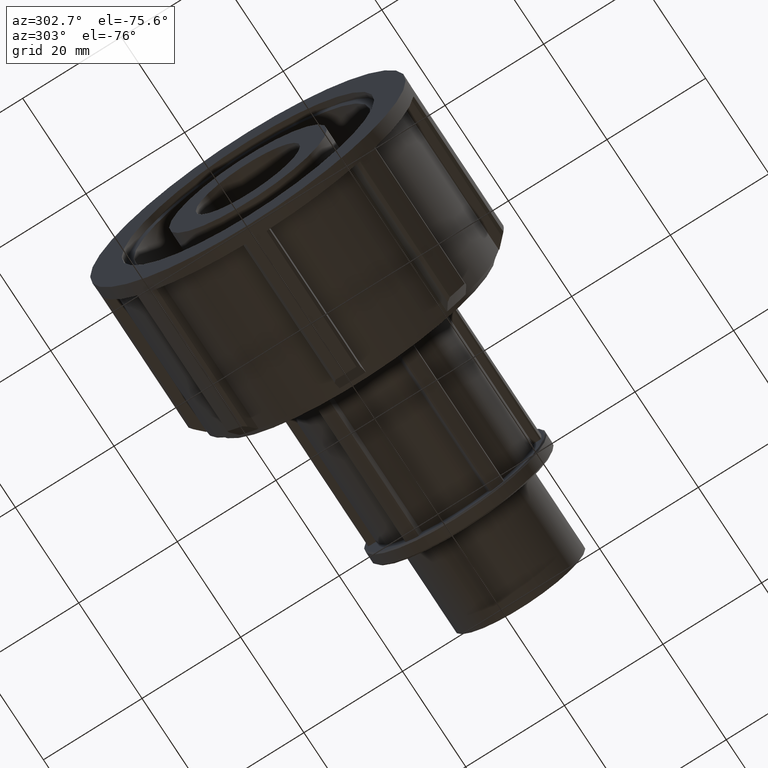
[diagram: clean part render]
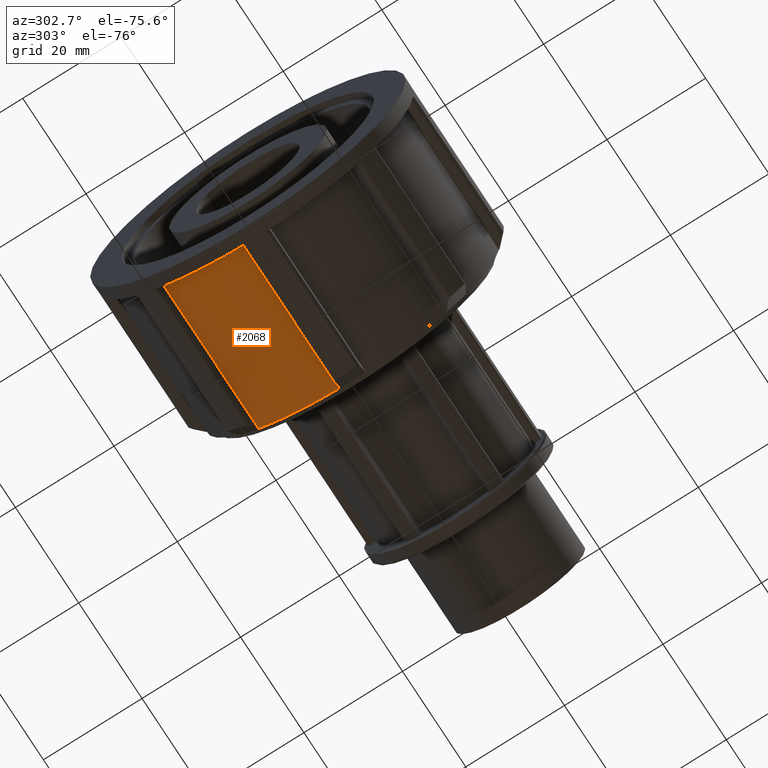
[diagram: same view with one face highlighted and labeled with its STEP entity id]
A machine part, auxiliary view. The second image highlights one B-rep face of the part: STEP entity #2068.
In plain terms, the highlighted cylindrical surface (partial cylindrical patch) has radius 29.76 mm, axis along (1, 0, 0).
Its self-contained STEP definition (entity closure, byte-faithful):
#139=CIRCLE('',#2237,29.76);
#146=CIRCLE('',#2251,29.76);
#184=CYLINDRICAL_SURFACE('',#2250,29.76);
#285=FACE_OUTER_BOUND('',#407,.T.);
#407=EDGE_LOOP('',(#1796,#1797,#1798,#1799));
#575=LINE('',#3306,#755);
#608=LINE('',#3426,#788);
#755=VECTOR('',#2644,30.53);
#788=VECTOR('',#2715,30.53);
#950=VERTEX_POINT('',#3303);
#951=VERTEX_POINT('',#3305);
#982=VERTEX_POINT('',#3423);
#983=VERTEX_POINT('',#3425);
#1207=EDGE_CURVE('',#951,#950,#575,.T.);
#1255=EDGE_CURVE('',#983,#982,#608,.T.);
#1272=EDGE_CURVE('',#950,#983,#139,.T.);
#1280=EDGE_CURVE('',#951,#982,#146,.T.);
#1796=ORIENTED_EDGE('',*,*,#1255,.T.);
#1797=ORIENTED_EDGE('',*,*,#1280,.F.);
#1798=ORIENTED_EDGE('',*,*,#1207,.T.);
#1799=ORIENTED_EDGE('',*,*,#1272,.T.);
#2068=ADVANCED_FACE('',(#285),#184,.T.);
#2237=AXIS2_PLACEMENT_3D('',#3459,#2752,#2753);
#2250=AXIS2_PLACEMENT_3D('',#3474,#2779,#2780);
#2251=AXIS2_PLACEMENT_3D('',#3475,#2781,#2782);
#2644=DIRECTION('',(-1.,0.,0.));
#2715=DIRECTION('',(1.,0.,0.));
#2752=DIRECTION('center_axis',(1.,0.,0.));
#2753=DIRECTION('ref_axis',(0.,0.,-1.));
#2779=DIRECTION('center_axis',(1.,0.,0.));
#2780=DIRECTION('ref_axis',(0.,1.,0.));
#2781=DIRECTION('center_axis',(1.,0.,0.));
#2782=DIRECTION('ref_axis',(0.,0.,-1.));
#3303=CARTESIAN_POINT('',(2.58,2.6441,-29.6423065092783));
#3305=CARTESIAN_POINT('',(33.11,2.6441,-29.6423065092783));
#3306=CARTESIAN_POINT('',(17.845,2.6441,-29.6423065092783));
#3423=CARTESIAN_POINT('',(33.11,19.0906149025854,-22.8299369828561));
#3425=CARTESIAN_POINT('',(2.58,19.0906149025854,-22.8299369828562));
#3426=CARTESIAN_POINT('',(17.845,19.0906149025854,-22.8299369828562));
#3459=CARTESIAN_POINT('Origin',(2.58000000000001,0.,0.));
#3474=CARTESIAN_POINT('Origin',(17.845,0.,0.));
#3475=CARTESIAN_POINT('Origin',(33.11,0.,0.));